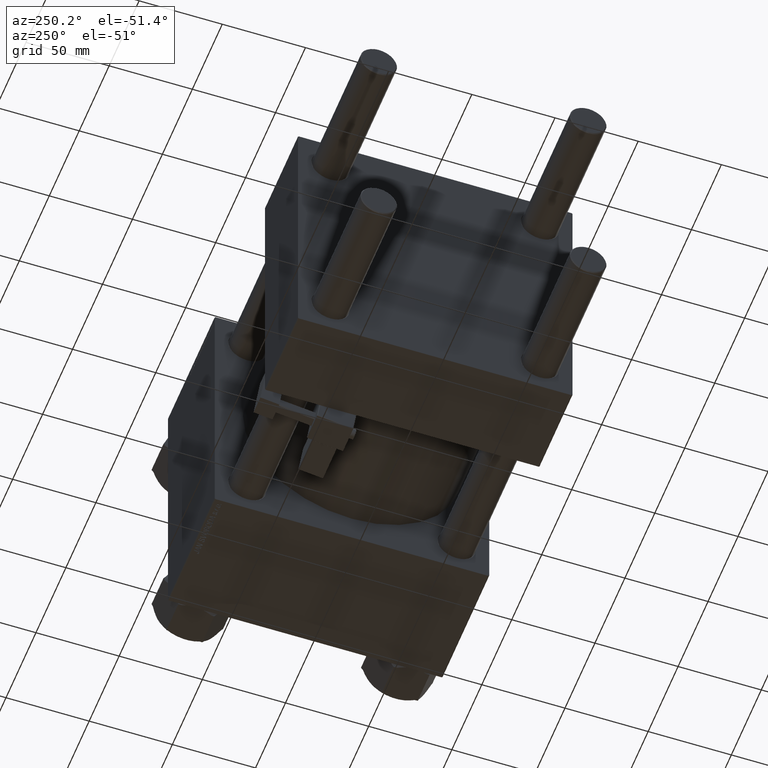
[diagram: clean part render]
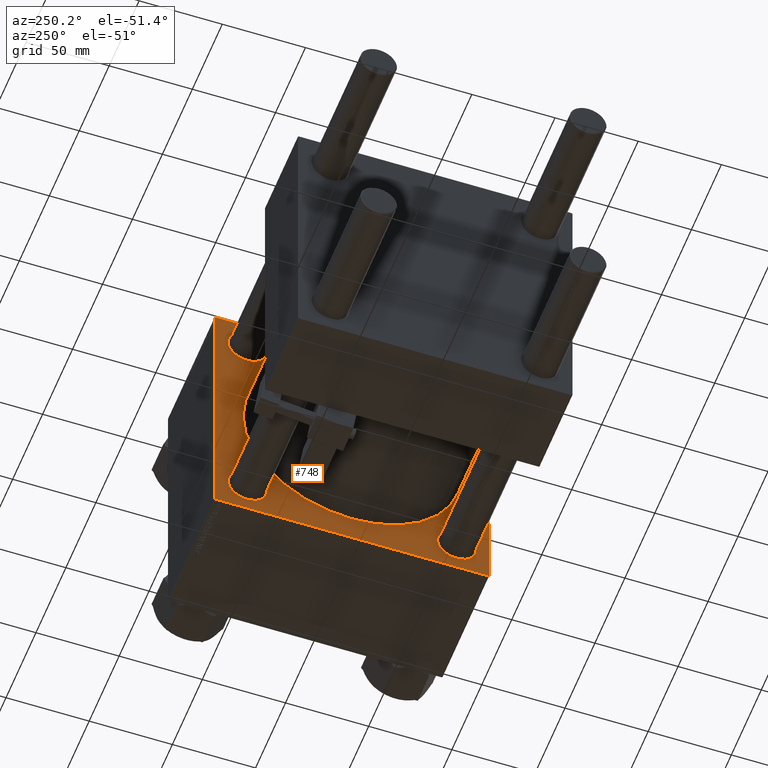
[diagram: same view with one face highlighted and labeled with its STEP entity id]
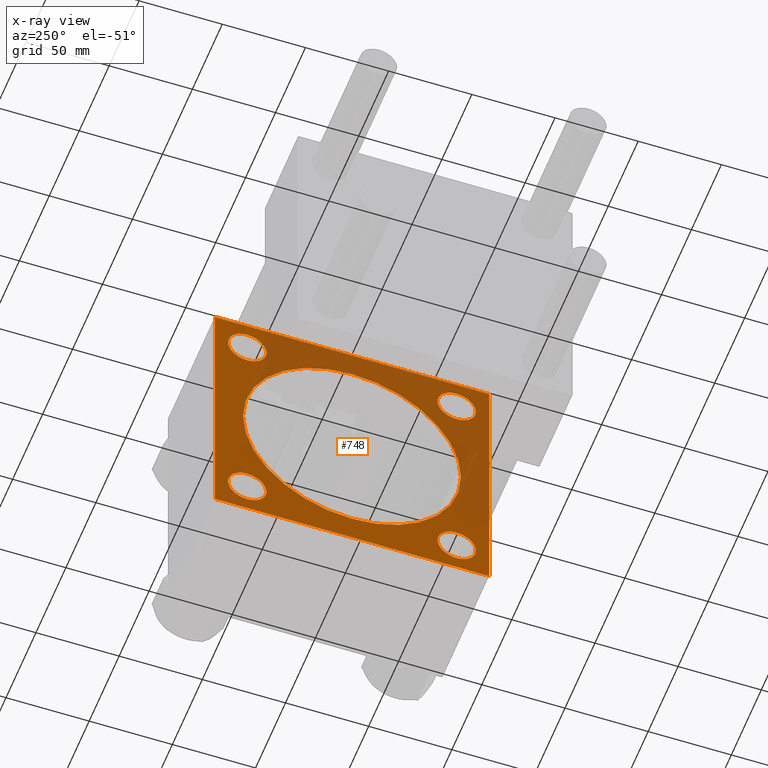
[diagram: x-ray of the same camera — body ghosted, the highlighted face saturated]
A machine part, auxiliary view. The second image highlights one B-rep face of the part: STEP entity #748.
The next image is the same camera in x-ray: the body ghosted, the highlighted face saturated — about 42% of this face is hidden behind the body in this view.
In plain terms, the highlighted planar face has unit normal (-1, 0, 0).
Its self-contained STEP definition (entity closure, byte-faithful):
#132 = CARTESIAN_POINT ( 'NONE',  ( 139.0000000000000000, 62.95000000000000284, 62.95000000000000284 ) ) ;
#252 = VERTEX_POINT ( 'NONE', #44774 ) ;
#387 = EDGE_CURVE ( 'NONE', #46147, #252, #37930, .T. ) ;
#748 = ADVANCED_FACE ( 'NONE', ( #32956, #20477, #49166, #25251, #52635, #12197 ), #49435, .T. ) ;
#937 = EDGE_CURVE ( 'NONE', #40164, #35503, #43305, .T. ) ;
#996 = CARTESIAN_POINT ( 'NONE',  ( 139.0000000000000000, -82.49999999999997158, 82.49999999999997158 ) ) ;
#1390 = AXIS2_PLACEMENT_3D ( 'NONE', #132, #32091, #15853 ) ;
#1899 = CIRCLE ( 'NONE', #49473, 11.49999999999989875 ) ;
#2129 = ORIENTED_EDGE ( 'NONE', *, *, #40203, .F. ) ;
#2262 = EDGE_CURVE ( 'NONE', #43160, #10240, #2813, .T. ) ;
#2596 = DIRECTION ( 'NONE',  ( 0.000000000000000000, 0.000000000000000000, -1.000000000000000000 ) ) ;
#2688 = LINE ( 'NONE', #43131, #20277 ) ;
#2813 = LINE ( 'NONE', #51487, #10881 ) ;
#3264 = CARTESIAN_POINT ( 'NONE',  ( 139.0000000000000000, -62.94999999999998153, -51.45000000000012363 ) ) ;
#3542 = EDGE_CURVE ( 'NONE', #40347, #5589, #37288, .T. ) ;
#3826 = EDGE_LOOP ( 'NONE', ( #6480, #24217 ) ) ;
#4162 = CARTESIAN_POINT ( 'NONE',  ( 139.0000000000000000, -62.94999999999998153, 74.44999999999991758 ) ) ;
#5055 = DIRECTION ( 'NONE',  ( 0.000000000000000000, 0.000000000000000000, -1.000000000000000000 ) ) ;
#5560 = DIRECTION ( 'NONE',  ( 1.000000000000000000, 0.000000000000000000, 0.000000000000000000 ) ) ;
#5589 = VERTEX_POINT ( 'NONE', #42885 ) ;
#6097 = CIRCLE ( 'NONE', #21387, 11.49999999999989875 ) ;
#6480 = ORIENTED_EDGE ( 'NONE', *, *, #44441, .T. ) ;
#6668 = ORIENTED_EDGE ( 'NONE', *, *, #15303, .T. ) ;
#8347 = CARTESIAN_POINT ( 'NONE',  ( 139.0000000000000000, 62.95000000000000284, -62.95000000000000284 ) ) ;
#8590 = DIRECTION ( 'NONE',  ( 0.000000000000000000, 0.000000000000000000, 1.000000000000000000 ) ) ;
#9111 = CARTESIAN_POINT ( 'NONE',  ( 139.0000000000000000, -62.94999999999998153, -62.95000000000001705 ) ) ;
#9229 = CIRCLE ( 'NONE', #48311, 65.50000000000001421 ) ;
#9648 = ORIENTED_EDGE ( 'NONE', *, *, #30486, .T. ) ;
#9652 = DIRECTION ( 'NONE',  ( 1.000000000000000000, 0.000000000000000000, -0.000000000000000000 ) ) ;
#10240 = VERTEX_POINT ( 'NONE', #34871 ) ;
#10241 = ORIENTED_EDGE ( 'NONE', *, *, #22732, .T. ) ;
#10881 = VECTOR ( 'NONE', #35274, 1000.000000000000114 ) ;
#10924 = CARTESIAN_POINT ( 'NONE',  ( 139.0000000000000000, 82.50000000000001421, 82.00000000000002842 ) ) ;
#11483 = VERTEX_POINT ( 'NONE', #50172 ) ;
#11495 = DIRECTION ( 'NONE',  ( 0.000000000000000000, 0.000000000000000000, 1.000000000000000000 ) ) ;
#11967 = VERTEX_POINT ( 'NONE', #20028 ) ;
#12197 = FACE_OUTER_BOUND ( 'NONE', #15803, .T. ) ;
#12242 = CARTESIAN_POINT ( 'NONE',  ( 139.0000000000000000, 62.95000000000000284, -51.45000000000010942 ) ) ;
#12408 = DIRECTION ( 'NONE',  ( 1.000000000000000000, 0.000000000000000000, -0.000000000000000000 ) ) ;
#13061 = CARTESIAN_POINT ( 'NONE',  ( 139.0000000000000000, 8.021436534415164826E-15, -65.50000000000001421 ) ) ;
#13186 = EDGE_CURVE ( 'NONE', #37799, #50763, #1899, .T. ) ;
#13846 = ORIENTED_EDGE ( 'NONE', *, *, #50326, .T. ) ;
#14534 = EDGE_CURVE ( 'NONE', #36973, #11967, #24027, .T. ) ;
#15021 = EDGE_LOOP ( 'NONE', ( #37094, #34978 ) ) ;
#15303 = EDGE_CURVE ( 'NONE', #24609, #40164, #47307, .T. ) ;
#15709 = DIRECTION ( 'NONE',  ( 0.000000000000000000, 0.000000000000000000, 1.000000000000000000 ) ) ;
#15803 = EDGE_LOOP ( 'NONE', ( #37343, #16787, #34210, #37189, #2129, #6668, #47602, #19431 ) ) ;
#15853 = DIRECTION ( 'NONE',  ( 0.000000000000000000, 0.000000000000000000, 1.000000000000000000 ) ) ;
#16206 = DIRECTION ( 'NONE',  ( 0.000000000000000000, 0.000000000000000000, 1.000000000000000000 ) ) ;
#16689 = VECTOR ( 'NONE', #32753, 1000.000000000000114 ) ;
#16774 = EDGE_CURVE ( 'NONE', #32075, #46147, #19545, .T. ) ;
#16787 = ORIENTED_EDGE ( 'NONE', *, *, #387, .T. ) ;
#17232 = DIRECTION ( 'NONE',  ( 0.000000000000000000, -1.682156097916903834E-16, -1.000000000000000000 ) ) ;
#18150 = EDGE_LOOP ( 'NONE', ( #20155, #13846 ) ) ;
#18993 = CARTESIAN_POINT ( 'NONE',  ( 139.0000000000000000, 62.95000000000000284, 62.95000000000000284 ) ) ;
#19341 = VECTOR ( 'NONE', #2596, 1000.000000000000000 ) ;
#19431 = ORIENTED_EDGE ( 'NONE', *, *, #23377, .T. ) ;
#19545 = LINE ( 'NONE', #43213, #23285 ) ;
#19866 = EDGE_CURVE ( 'NONE', #11967, #36973, #21705, .T. ) ;
#20028 = CARTESIAN_POINT ( 'NONE',  ( 139.0000000000000000, 62.95000000000000284, -74.44999999999990337 ) ) ;
#20155 = ORIENTED_EDGE ( 'NONE', *, *, #23089, .T. ) ;
#20277 = VECTOR ( 'NONE', #30653, 1000.000000000000000 ) ;
#20477 = FACE_BOUND ( 'NONE', #30555, .T. ) ;
#20628 = DIRECTION ( 'NONE',  ( 0.000000000000000000, 0.000000000000000000, 1.000000000000000000 ) ) ;
#20738 = CARTESIAN_POINT ( 'NONE',  ( 139.0000000000000000, 0.000000000000000000, 0.000000000000000000 ) ) ;
#21013 = DIRECTION ( 'NONE',  ( 0.000000000000000000, 0.000000000000000000, -1.000000000000000000 ) ) ;
#21192 = CARTESIAN_POINT ( 'NONE',  ( 139.0000000000000000, -82.25000000000116529, -82.24999999999889155 ) ) ;
#21387 = AXIS2_PLACEMENT_3D ( 'NONE', #32904, #12408, #48340 ) ;
#21705 = CIRCLE ( 'NONE', #52239, 11.49999999999989875 ) ;
#21984 = CARTESIAN_POINT ( 'NONE',  ( 139.0000000000000000, 62.95000000000000284, -62.95000000000000284 ) ) ;
#22165 = VECTOR ( 'NONE', #17232, 1000.000000000000000 ) ;
#22193 = ORIENTED_EDGE ( 'NONE', *, *, #3542, .T. ) ;
#22732 = EDGE_CURVE ( 'NONE', #5589, #40347, #36215, .T. ) ;
#23089 = EDGE_CURVE ( 'NONE', #26960, #26722, #46403, .T. ) ;
#23285 = VECTOR ( 'NONE', #51444, 1000.000000000000000 ) ;
#23377 = EDGE_CURVE ( 'NONE', #35503, #32075, #45508, .T. ) ;
#23721 = AXIS2_PLACEMENT_3D ( 'NONE', #18993, #23773, #11495 ) ;
#23723 = CARTESIAN_POINT ( 'NONE',  ( 139.0000000000000000, -62.94999999999998153, 62.95000000000001705 ) ) ;
#23773 = DIRECTION ( 'NONE',  ( 1.000000000000000000, 0.000000000000000000, -0.000000000000000000 ) ) ;
#24027 = CIRCLE ( 'NONE', #51192, 11.49999999999989875 ) ;
#24172 = CARTESIAN_POINT ( 'NONE',  ( 139.0000000000000000, -82.49999999999997158, 81.99999999999991473 ) ) ;
#24217 = ORIENTED_EDGE ( 'NONE', *, *, #27524, .T. ) ;
#24609 = VERTEX_POINT ( 'NONE', #30297 ) ;
#25251 = FACE_BOUND ( 'NONE', #18150, .T. ) ;
#26520 = CARTESIAN_POINT ( 'NONE',  ( 139.0000000000000000, -62.94999999999998153, 62.95000000000001705 ) ) ;
#26722 = VERTEX_POINT ( 'NONE', #28155 ) ;
#26960 = VERTEX_POINT ( 'NONE', #3264 ) ;
#27200 = DIRECTION ( 'NONE',  ( 1.000000000000000000, 0.000000000000000000, -0.000000000000000000 ) ) ;
#27394 = DIRECTION ( 'NONE',  ( 0.000000000000000000, 0.7071067811865474617, -0.7071067811865474617 ) ) ;
#27524 = EDGE_CURVE ( 'NONE', #51335, #11483, #30305, .T. ) ;
#28120 = CARTESIAN_POINT ( 'NONE',  ( 139.0000000000000000, 82.50000000000001421, -82.00000000000005684 ) ) ;
#28155 = CARTESIAN_POINT ( 'NONE',  ( 139.0000000000000000, -62.94999999999998153, -74.44999999999991758 ) ) ;
#28205 = DIRECTION ( 'NONE',  ( -1.000000000000000000, -0.000000000000000000, 0.000000000000000000 ) ) ;
#29792 = CARTESIAN_POINT ( 'NONE',  ( 139.0000000000000000, 0.000000000000000000, 0.000000000000000000 ) ) ;
#29814 = DIRECTION ( 'NONE',  ( 1.000000000000000000, 0.000000000000000000, 0.000000000000000000 ) ) ;
#30076 = CARTESIAN_POINT ( 'NONE',  ( 139.0000000000000000, 0.000000000000000000, 0.000000000000000000 ) ) ;
#30297 = CARTESIAN_POINT ( 'NONE',  ( 139.0000000000000000, 82.00000000000004263, 82.50000000000000000 ) ) ;
#30305 = CIRCLE ( 'NONE', #44709, 65.50000000000001421 ) ;
#30486 = EDGE_CURVE ( 'NONE', #50763, #37799, #41443, .T. ) ;
#30555 = EDGE_LOOP ( 'NONE', ( #22193, #10241 ) ) ;
#30653 = DIRECTION ( 'NONE',  ( 0.000000000000000000, -1.000000000000000000, -1.682156097916904081E-16 ) ) ;
#32075 = VERTEX_POINT ( 'NONE', #44481 ) ;
#32091 = DIRECTION ( 'NONE',  ( 1.000000000000000000, 0.000000000000000000, -0.000000000000000000 ) ) ;
#32753 = DIRECTION ( 'NONE',  ( -0.000000000000000000, -0.7071067811865474617, -0.7071067811865474617 ) ) ;
#32904 = CARTESIAN_POINT ( 'NONE',  ( 139.0000000000000000, -62.94999999999998153, -62.95000000000001705 ) ) ;
#32956 = FACE_BOUND ( 'NONE', #47649, .T. ) ;
#34210 = ORIENTED_EDGE ( 'NONE', *, *, #35375, .F. ) ;
#34261 = VECTOR ( 'NONE', #27394, 1000.000000000000114 ) ;
#34800 = CARTESIAN_POINT ( 'NONE',  ( 139.0000000000000000, 82.50000000000001421, 82.50000000000000000 ) ) ;
#34871 = CARTESIAN_POINT ( 'NONE',  ( 139.0000000000000000, -81.99999999999990052, 82.49999999999997158 ) ) ;
#34978 = ORIENTED_EDGE ( 'NONE', *, *, #19866, .T. ) ;
#35274 = DIRECTION ( 'NONE',  ( -0.000000000000000000, 0.7071067811865573427, 0.7071067811865376918 ) ) ;
#35375 = EDGE_CURVE ( 'NONE', #43160, #252, #37457, .T. ) ;
#35503 = VERTEX_POINT ( 'NONE', #28120 ) ;
#35958 = CARTESIAN_POINT ( 'NONE',  ( 139.0000000000000000, -62.94999999999998153, 51.45000000000012363 ) ) ;
#36215 = CIRCLE ( 'NONE', #1390, 11.49999999999989875 ) ;
#36751 = CARTESIAN_POINT ( 'NONE',  ( 139.0000000000000000, 82.25000000000002842, -82.25000000000002842 ) ) ;
#36973 = VERTEX_POINT ( 'NONE', #12242 ) ;
#37094 = ORIENTED_EDGE ( 'NONE', *, *, #14534, .T. ) ;
#37189 = ORIENTED_EDGE ( 'NONE', *, *, #2262, .T. ) ;
#37288 = CIRCLE ( 'NONE', #23721, 11.49999999999989875 ) ;
#37343 = ORIENTED_EDGE ( 'NONE', *, *, #16774, .T. ) ;
#37412 = DIRECTION ( 'NONE',  ( 0.000000000000000000, -0.7071067811865376918, 0.7071067811865574537 ) ) ;
#37457 = LINE ( 'NONE', #996, #22165 ) ;
#37799 = VERTEX_POINT ( 'NONE', #35958 ) ;
#37930 = LINE ( 'NONE', #21192, #46516 ) ;
#38186 = DIRECTION ( 'NONE',  ( 0.000000000000000000, 0.000000000000000000, 1.000000000000000000 ) ) ;
#39854 = CARTESIAN_POINT ( 'NONE',  ( 139.0000000000000000, 82.25000000000001421, 82.25000000000001421 ) ) ;
#40164 = VERTEX_POINT ( 'NONE', #10924 ) ;
#40203 = EDGE_CURVE ( 'NONE', #24609, #10240, #2688, .T. ) ;
#40347 = VERTEX_POINT ( 'NONE', #42485 ) ;
#41443 = CIRCLE ( 'NONE', #44000, 11.49999999999989875 ) ;
#42440 = DIRECTION ( 'NONE',  ( 1.000000000000000000, 0.000000000000000000, -0.000000000000000000 ) ) ;
#42485 = CARTESIAN_POINT ( 'NONE',  ( 139.0000000000000000, 62.95000000000000284, 74.44999999999990337 ) ) ;
#42718 = DIRECTION ( 'NONE',  ( 0.000000000000000000, 0.000000000000000000, 1.000000000000000000 ) ) ;
#42885 = CARTESIAN_POINT ( 'NONE',  ( 139.0000000000000000, 62.95000000000000284, 51.45000000000010942 ) ) ;
#43024 = ORIENTED_EDGE ( 'NONE', *, *, #13186, .T. ) ;
#43131 = CARTESIAN_POINT ( 'NONE',  ( 139.0000000000000000, 82.50000000000001421, 82.50000000000000000 ) ) ;
#43160 = VERTEX_POINT ( 'NONE', #24172 ) ;
#43213 = CARTESIAN_POINT ( 'NONE',  ( 139.0000000000000000, 82.50000000000001421, -82.50000000000002842 ) ) ;
#43305 = LINE ( 'NONE', #34800, #19341 ) ;
#44000 = AXIS2_PLACEMENT_3D ( 'NONE', #26520, #50945, #42718 ) ;
#44441 = EDGE_CURVE ( 'NONE', #11483, #51335, #9229, .T. ) ;
#44481 = CARTESIAN_POINT ( 'NONE',  ( 139.0000000000000000, 82.00000000000004263, -82.50000000000002842 ) ) ;
#44709 = AXIS2_PLACEMENT_3D ( 'NONE', #29792, #5560, #21013 ) ;
#44774 = CARTESIAN_POINT ( 'NONE',  ( 139.0000000000000000, -82.50000000000000000, -82.00000000000005684 ) ) ;
#45077 = DIRECTION ( 'NONE',  ( 1.000000000000000000, 0.000000000000000000, -0.000000000000000000 ) ) ;
#45508 = LINE ( 'NONE', #36751, #16689 ) ;
#45635 = AXIS2_PLACEMENT_3D ( 'NONE', #20738, #28205, #16206 ) ;
#46147 = VERTEX_POINT ( 'NONE', #51974 ) ;
#46403 = CIRCLE ( 'NONE', #47304, 11.49999999999989875 ) ;
#46516 = VECTOR ( 'NONE', #37412, 999.9999999999998863 ) ;
#47304 = AXIS2_PLACEMENT_3D ( 'NONE', #9111, #9652, #8590 ) ;
#47307 = LINE ( 'NONE', #39854, #34261 ) ;
#47602 = ORIENTED_EDGE ( 'NONE', *, *, #937, .T. ) ;
#47649 = EDGE_LOOP ( 'NONE', ( #9648, #43024 ) ) ;
#48311 = AXIS2_PLACEMENT_3D ( 'NONE', #30076, #29814, #5055 ) ;
#48340 = DIRECTION ( 'NONE',  ( 0.000000000000000000, 0.000000000000000000, 1.000000000000000000 ) ) ;
#49166 = FACE_BOUND ( 'NONE', #15021, .T. ) ;
#49435 = PLANE ( 'NONE',  #45635 ) ;
#49473 = AXIS2_PLACEMENT_3D ( 'NONE', #23723, #27200, #15709 ) ;
#50172 = CARTESIAN_POINT ( 'NONE',  ( 139.0000000000000000, 0.000000000000000000, 65.50000000000001421 ) ) ;
#50326 = EDGE_CURVE ( 'NONE', #26722, #26960, #6097, .T. ) ;
#50763 = VERTEX_POINT ( 'NONE', #4162 ) ;
#50945 = DIRECTION ( 'NONE',  ( 1.000000000000000000, 0.000000000000000000, -0.000000000000000000 ) ) ;
#51192 = AXIS2_PLACEMENT_3D ( 'NONE', #8347, #45077, #20628 ) ;
#51335 = VERTEX_POINT ( 'NONE', #13061 ) ;
#51444 = DIRECTION ( 'NONE',  ( 0.000000000000000000, -1.000000000000000000, 0.000000000000000000 ) ) ;
#51487 = CARTESIAN_POINT ( 'NONE',  ( 139.0000000000000000, -82.24999999999880629, 82.25000000000108002 ) ) ;
#51974 = CARTESIAN_POINT ( 'NONE',  ( 139.0000000000000000, -82.00000000000004263, -82.50000000000002842 ) ) ;
#52239 = AXIS2_PLACEMENT_3D ( 'NONE', #21984, #42440, #38186 ) ;
#52635 = FACE_BOUND ( 'NONE', #3826, .T. ) ;